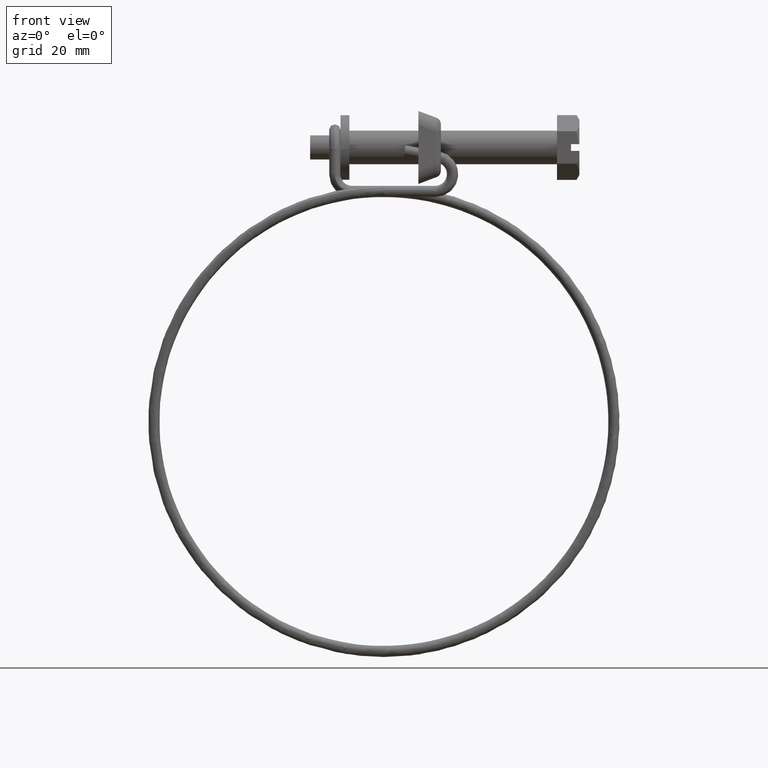
[diagram: clean part render]
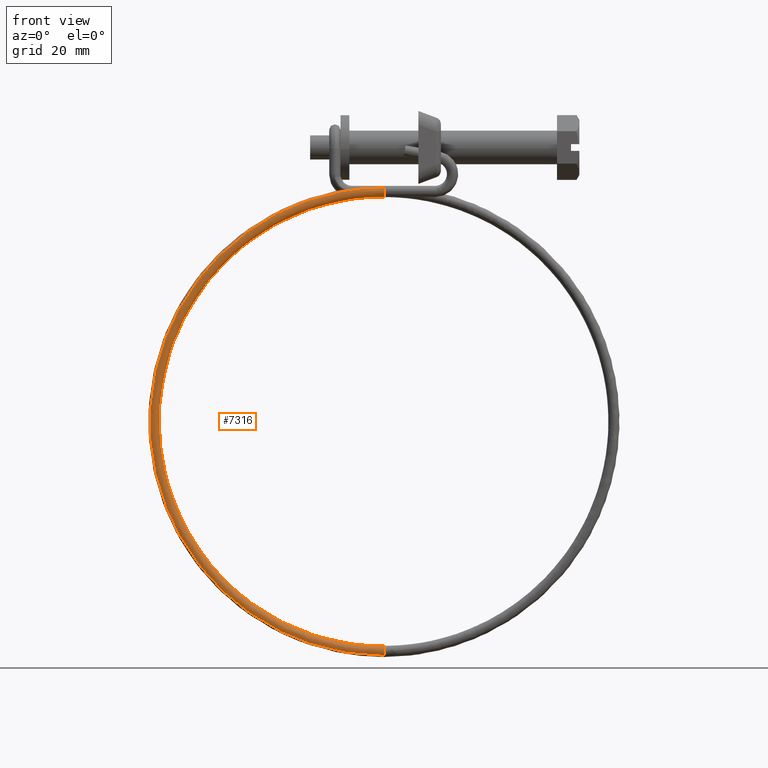
[diagram: same view with one face highlighted and labeled with its STEP entity id]
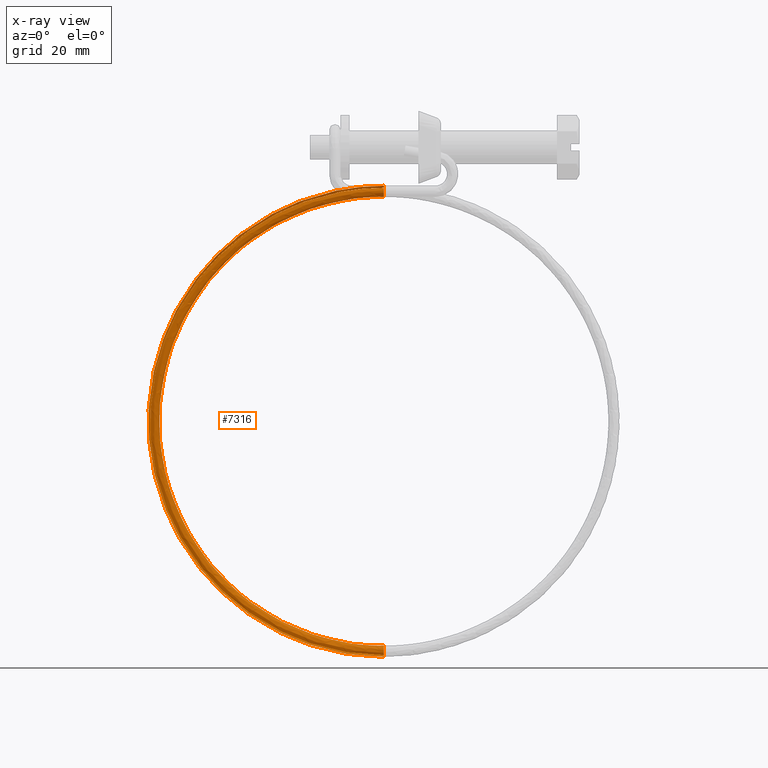
[diagram: x-ray of the same camera — body ghosted, the highlighted face saturated]
A machine part, front view. The second image highlights one B-rep face of the part: STEP entity #7316.
The next image is the same camera in x-ray: the body ghosted, the highlighted face saturated — about 0% of this face is hidden behind the body in this view.
In plain terms, the highlighted face is a freeform B-spline surface patch.
Its self-contained STEP definition (entity closure, byte-faithful):
#4592=CARTESIAN_POINT('',(-30.849999999999049,-6.004820507341497,-6.898214138594652));
#4593=VERTEX_POINT('',#4592);
#4599=CARTESIAN_POINT('',(-30.849999999999049,-6.358996926632420,-6.851201973787906));
#4600=VERTEX_POINT('',#4599);
#4601=CARTESIAN_POINT('',(-30.849999999999049,-6.004820507341497,-6.898214138594652));
#4602=CARTESIAN_POINT('',(-30.849999999999049,-6.118868065633183,-6.861704642742855));
#4603=CARTESIAN_POINT('',(-30.849999999999049,-6.239317376582270,-6.845181952245047));
#4604=CARTESIAN_POINT('',(-30.849999999999049,-6.358996926632420,-6.851201973787906));
#4605=B_SPLINE_CURVE_WITH_KNOTS('',3,(#4601,#4602,#4603,#4604),.UNSPECIFIED.,.F.,.U.,(4,4),(0.942811831421898,1.0),.UNSPECIFIED.);
#4606=EDGE_CURVE('',#4593,#4600,#4605,.T.);
#4608=CARTESIAN_POINT('',(-30.849999999999049,-7.071613986342928,-7.202001879862161));
#4609=VERTEX_POINT('',#4608);
#4619=CARTESIAN_POINT('',(-30.849999999999049,-6.261007024347260,-8.848800026212404));
#4620=VERTEX_POINT('',#4619);
#4621=CARTESIAN_POINT('',(-30.849999999999049,-7.071613986342928,-7.202001879862161));
#4622=CARTESIAN_POINT('',(-30.849999999999049,-7.234151806808340,-7.393563702138208));
#4623=CARTESIAN_POINT('',(-30.849999999999049,-7.321114744118533,-7.647971026170832));
#4624=CARTESIAN_POINT('',(-30.849999999999049,-7.295974153487710,-8.160480924739490));
#4625=CARTESIAN_POINT('',(-30.849999999999049,-7.175582627132500,-8.415075380019149));
#4626=CARTESIAN_POINT('',(-30.849999999999049,-6.787647128407930,-8.766731073329181));
#4627=CARTESIAN_POINT('',(-30.849999999999049,-6.522491997944011,-8.861626874426781));
#4628=CARTESIAN_POINT('',(-30.849999999999049,-6.261007024347260,-8.848800026212404));
#4629=B_SPLINE_CURVE_WITH_KNOTS('',3,(#4621,#4622,#4623,#4624,#4625,#4626,#4627,#4628),.UNSPECIFIED.,.F.,.U.,(4,2,2,4),(0.130000310572804,0.250000000000000,0.375000000000000,0.500000000000000),.UNSPECIFIED.);
#4630=EDGE_CURVE('',#4609,#4620,#4629,.T.);
#4632=CARTESIAN_POINT('',(-30.849999999999049,-5.310113771967435,-7.862072860608219));
#4633=VERTEX_POINT('',#4632);
#4634=CARTESIAN_POINT('',(-30.849999999999049,-6.261007024347260,-8.848800026212404));
#4635=CARTESIAN_POINT('',(-30.849999999999049,-5.999516634964651,-8.835973256124104));
#4636=CARTESIAN_POINT('',(-30.849999999999049,-5.744914699792327,-8.715581837670982));
#4637=CARTESIAN_POINT('',(-30.849999999999049,-5.406925081934599,-8.342738289815900));
#4638=CARTESIAN_POINT('',(-30.849999999999049,-5.313598938315091,-8.103321585346517));
#4639=CARTESIAN_POINT('',(-30.849999999999049,-5.310113771967435,-7.862072860608219));
#4640=B_SPLINE_CURVE_WITH_KNOTS('',3,(#4634,#4635,#4636,#4637,#4638,#4639),.UNSPECIFIED.,.F.,.U.,(4,2,4),(0.500000000000000,0.625000000000000,0.740274320840835),.UNSPECIFIED.);
#4641=EDGE_CURVE('',#4620,#4633,#4640,.T.);
#4716=CARTESIAN_POINT('',(-30.849999999999049,-5.310113771967435,-7.862072860608219));
#4717=CARTESIAN_POINT('',(-30.849999999999049,-5.309818651959471,-7.841712398043541));
#4718=CARTESIAN_POINT('',(-30.849999999999049,-5.310162997058281,-7.821338745708190));
#4719=CARTESIAN_POINT('',(-30.849999999999049,-5.323966127098498,-7.539417066609430));
#4720=CARTESIAN_POINT('',(-30.849999999999049,-5.444332243792880,-7.284715254388395));
#4721=CARTESIAN_POINT('',(-30.849999999999049,-5.743490216021185,-7.013348610114129));
#4722=CARTESIAN_POINT('',(-30.849999999999049,-5.869655061876357,-6.941730163043455));
#4723=CARTESIAN_POINT('',(-30.849999999999049,-6.004820507341497,-6.898214138594652));
#4724=B_SPLINE_CURVE_WITH_KNOTS('',3,(#4716,#4717,#4718,#4719,#4720,#4721,#4722,#4723),.UNSPECIFIED.,.F.,.U.,(4,2,2,4),(0.740274320840835,0.750000000000000,0.875000000000000,0.942811831421898),.UNSPECIFIED.);
#4725=EDGE_CURVE('',#4633,#4593,#4724,.T.);
#6112=CARTESIAN_POINT('',(-30.850000000000879,-4.300002000000002,-88.850001000000091));
#6113=VERTEX_POINT('',#6112);
#6114=CARTESIAN_POINT('',(-30.849999999873852,-3.302485887027423,-89.780271342154180));
#6115=VERTEX_POINT('',#6114);
#6116=CARTESIAN_POINT('',(-30.850000000000879,-4.300002000000002,-88.850001000000091));
#6117=CARTESIAN_POINT('',(-30.849999999983051,-4.038195655369269,-88.850000495566150));
#6118=CARTESIAN_POINT('',(-30.849999999958470,-3.777998799462701,-88.957772896960378));
#6119=CARTESIAN_POINT('',(-30.849999999911908,-3.424196145400037,-89.311556064566233));
#6120=CARTESIAN_POINT('',(-30.849999999890120,-3.319730377676162,-89.542534340369400));
#6121=CARTESIAN_POINT('',(-30.849999999873852,-3.302485887027423,-89.780271342154180));
#6122=B_SPLINE_CURVE_WITH_KNOTS('',3,(#6116,#6117,#6118,#6119,#6120,#6121),.UNSPECIFIED.,.F.,.U.,(4,2,4),(0.500000000000000,0.625000000000000,0.738888458204890),.UNSPECIFIED.);
#6123=EDGE_CURVE('',#6113,#6115,#6122,.T.);
#6125=CARTESIAN_POINT('',(-30.850000000000939,-5.028950649559777,-90.534537033441865));
#6126=VERTEX_POINT('',#6125);
#6127=CARTESIAN_POINT('',(-30.850000000000939,-5.028950649559777,-90.534537033441865));
#6128=CARTESIAN_POINT('',(-30.850000000000922,-5.200678828486540,-90.351168804465900));
#6129=CARTESIAN_POINT('',(-30.850000000000911,-5.300001999999999,-90.101327761825374));
#6130=CARTESIAN_POINT('',(-30.850000000000900,-5.300002000000001,-89.588201612200962));
#6131=CARTESIAN_POINT('',(-30.850000000000890,-5.192228903609815,-89.328014341236823));
#6132=CARTESIAN_POINT('',(-30.850000000000890,-4.821988658763284,-88.957774096390295));
#6133=CARTESIAN_POINT('',(-30.850000000000879,-4.561801387799152,-88.850001000000105));
#6134=CARTESIAN_POINT('',(-30.850000000000879,-4.300002000000002,-88.850001000000091));
#6135=B_SPLINE_CURVE_WITH_KNOTS('',3,(#6127,#6128,#6129,#6130,#6131,#6132,#6133,#6134),.UNSPECIFIED.,.F.,.U.,(4,2,2,4),(0.130000310572690,0.250000000000000,0.375000000000000,0.500000000000000),.UNSPECIFIED.);
#6136=EDGE_CURVE('',#6126,#6113,#6135,.T.);
#6138=CARTESIAN_POINT('',(-30.850000000000939,-4.300002000000005,-90.850001000000049));
#6139=VERTEX_POINT('',#6138);
#6149=CARTESIAN_POINT('',(-30.850003869120879,-4.287434920558142,-90.849920177932916));
#6150=VERTEX_POINT('',#6149);
#6151=CARTESIAN_POINT('',(-30.850003869120879,-4.287434920558142,-90.849920177932916));
#6152=CARTESIAN_POINT('',(-30.850002579547390,-4.291623333502193,-90.849974635237615));
#6153=CARTESIAN_POINT('',(-30.850001289809772,-4.295812460326872,-90.850001617475627));
#6154=CARTESIAN_POINT('',(-30.850000000000939,-4.300002000000005,-90.850001000000049));
#6155=B_SPLINE_CURVE_WITH_KNOTS('',3,(#6151,#6152,#6153,#6154),.UNSPECIFIED.,.F.,.U.,(4,4),(0.997999646031945,1.0),.UNSPECIFIED.);
#6156=EDGE_CURVE('',#6150,#6139,#6155,.T.);
#6239=CARTESIAN_POINT('',(-30.849999999873852,-3.302485887027423,-89.780271342154180));
#6240=CARTESIAN_POINT('',(-30.850000042248901,-3.300804588165965,-89.803466287294697));
#6241=CARTESIAN_POINT('',(-30.850000086246411,-3.299953544919559,-89.826725569235393));
#6242=CARTESIAN_POINT('',(-30.850000644305730,-3.299960689543872,-90.111797701208843));
#6243=CARTESIAN_POINT('',(-30.850001347914649,-3.407742793975380,-90.371985962490115));
#6244=CARTESIAN_POINT('',(-30.850002728927361,-3.775038273238351,-90.739265704915937));
#6245=CARTESIAN_POINT('',(-30.850003398269848,-4.029888317469533,-90.846533032261149));
#6246=CARTESIAN_POINT('',(-30.850003869120879,-4.287434920558142,-90.849920177932916));
#6247=B_SPLINE_CURVE_WITH_KNOTS('',3,(#6239,#6240,#6241,#6242,#6243,#6244,#6245,#6246),.UNSPECIFIED.,.F.,.U.,(4,2,2,4),(0.738888458204889,0.750000000000000,0.875000000000000,0.997999646031945),.UNSPECIFIED.);
#6248=EDGE_CURVE('',#6115,#6150,#6247,.T.);
#6975=CARTESIAN_POINT('',(-30.850000000000950,-5.028949982883884,-90.534537745304775));
#6976=CARTESIAN_POINT('',(-30.850000000000950,-5.200678314366810,-90.351170097699224));
#6977=CARTESIAN_POINT('',(-30.850000000000950,-5.300002000000000,-90.101328412287245));
#6978=CARTESIAN_POINT('',(-30.850000000000950,-5.300002000000000,-89.588201612200891));
#6979=CARTESIAN_POINT('',(-30.850000000000950,-5.192228903609820,-89.328014341236795));
#6980=CARTESIAN_POINT('',(-30.850000000000950,-4.821988658763289,-88.957774096390210));
#6981=CARTESIAN_POINT('',(-30.850000000000950,-4.561801387799160,-88.850000999999992));
#6982=CARTESIAN_POINT('',(-30.850000000000950,-4.038202612200860,-88.850000999999992));
#6983=CARTESIAN_POINT('',(-30.850000000000950,-3.778015341236725,-88.957774096390210));
#6984=CARTESIAN_POINT('',(-30.850000000000950,-3.407775096390195,-89.328014341236795));
#6985=CARTESIAN_POINT('',(-30.850000000000950,-3.300002000000000,-89.588201612200891));
#6986=CARTESIAN_POINT('',(-30.850000000000950,-3.300002000000000,-90.111800387799207));
#6987=CARTESIAN_POINT('',(-30.850000000000950,-3.407775096390195,-90.371987658763288));
#6988=CARTESIAN_POINT('',(-30.850000000000950,-3.778015341236725,-90.742227903609802));
#6989=CARTESIAN_POINT('',(-30.850000000000950,-4.038202612200860,-90.850001000000006));
#6990=CARTESIAN_POINT('',(-30.850000000000950,-4.300002000000009,-90.850001000000006));
#6991=CARTESIAN_POINT('',(-36.305318899030567,-5.028950803611580,-90.534537759588233));
#6992=CARTESIAN_POINT('',(-36.280759799363331,-5.200679131382723,-90.351170115361839));
#6993=CARTESIAN_POINT('',(-36.247729755111862,-5.300002812053657,-90.101328431836720));
#6994=CARTESIAN_POINT('',(-36.180547070363353,-5.300002802012930,-89.588201631750294));
#6995=CARTESIAN_POINT('',(-36.146827141507551,-5.192229700610910,-89.328014358701495));
#6996=CARTESIAN_POINT('',(-36.099540537418648,-4.821989448783550,-88.957774106594599));
#6997=CARTESIAN_POINT('',(-36.086265045196299,-4.561802175896450,-88.850001005139902));
#6998=CARTESIAN_POINT('',(-36.087945448286249,-4.038203400676040,-88.850000994896604));
#6999=CARTESIAN_POINT('',(-36.102890995987799,-3.778016132011990,-88.957774086182610));
#7000=CARTESIAN_POINT('',(-36.152554048954457,-3.407775894676635,-89.328014323762602));
#7001=CARTESIAN_POINT('',(-36.186965737444048,-3.300002803456245,-89.588201592639706));
#7002=CARTESIAN_POINT('',(-36.255519497335548,-3.300002813703005,-90.111800368238093));
#7003=CARTESIAN_POINT('',(-36.289239426191337,-3.407775915106140,-90.371987641326584));
#7004=CARTESIAN_POINT('',(-36.336526030294252,-3.778016166932260,-90.742227893402301));
#7005=CARTESIAN_POINT('',(-36.349801522516600,-4.038203439814700,-90.850000994896703));
#7006=CARTESIAN_POINT('',(-36.348961320971647,-4.300002827424925,-90.850001000018310));
#7007=CARTESIAN_POINT('',(-41.756597362550274,-5.055535354850994,-89.449960368318614));
#7008=CARTESIAN_POINT('',(-41.707497660455019,-5.227143996096883,-89.271475606085744));
#7009=CARTESIAN_POINT('',(-41.641462449119842,-5.326306707839581,-89.028201014807109));
#7010=CARTESIAN_POINT('',(-41.507147679842049,-5.325979289015410,-88.528431599667300));
#7011=CARTESIAN_POINT('',(-41.439733219050403,-5.218041856541750,-88.274948587017604));
#7012=CARTESIAN_POINT('',(-41.345195625866047,-4.847571157610400,-87.914109951740002));
#7013=CARTESIAN_POINT('',(-41.318654640139997,-4.587319187741199,-87.808976313155000));
#7014=CARTESIAN_POINT('',(-41.322014180771248,-4.063728601685940,-87.808642212304690));
#7015=CARTESIAN_POINT('',(-41.351894019598753,-3.803614168741860,-87.913443807399801));
#7016=CARTESIAN_POINT('',(-41.451182720656803,-3.433615959744955,-88.273809952732407));
#7017=CARTESIAN_POINT('',(-41.519980179680047,-3.326010570770515,-88.527155428452389));
#7018=CARTESIAN_POINT('',(-41.657036066772662,-3.326344671609175,-89.037124219411396));
#7019=CARTESIAN_POINT('',(-41.724450527564301,-3.434282104085165,-89.290607232135599));
#7020=CARTESIAN_POINT('',(-41.818988120730047,-3.804752803020000,-89.651445867375983));
#7021=CARTESIAN_POINT('',(-41.845529106456048,-4.065004772884550,-89.756579505998204));
#7022=CARTESIAN_POINT('',(-41.843849336140451,-4.326800065912181,-89.756746556423352));
#7023=CARTESIAN_POINT('',(-51.834657833151631,-5.157864482385008,-85.275339194153176));
#7024=CARTESIAN_POINT('',(-51.740194108241369,-5.329012513090169,-85.115645508893181));
#7025=CARTESIAN_POINT('',(-51.613147878577202,-5.427555740128985,-84.897643428204361));
#7026=CARTESIAN_POINT('',(-51.354737483445497,-5.425968297403061,-84.449277974028604));
#7027=CARTESIAN_POINT('',(-51.225037692886900,-5.317398441309540,-84.221595328072993));
#7028=CARTESIAN_POINT('',(-51.043155261528312,-4.946040873209769,-83.896937425432597));
#7029=CARTESIAN_POINT('',(-50.992092622332002,-4.685539918986850,-83.801961357712301));
#7030=CARTESIAN_POINT('',(-50.998556097764002,-4.161980849212215,-83.800341518205400));
#7031=CARTESIAN_POINT('',(-51.056042411432301,-3.902146722826950,-83.893707721096192));
#7032=CARTESIAN_POINT('',(-51.247065577457001,-3.533079953746015,-84.216074824728210));
#7033=CARTESIAN_POINT('',(-51.379426141108112,-3.426119962472660,-84.443090642850819));
#7034=CARTESIAN_POINT('',(-51.643110217698698,-3.427739801991240,-84.900606412417901));
#7035=CARTESIAN_POINT('',(-51.772810008257302,-3.536309658082435,-85.128289058299003));
#7036=CARTESIAN_POINT('',(-51.954692439634400,-3.907667226178710,-85.452946960976604));
#7037=CARTESIAN_POINT('',(-52.005755078830703,-4.168168180406290,-85.547923028659696));
#7038=CARTESIAN_POINT('',(-52.002523341114752,-4.429947715293605,-85.548732948413146));
#7039=CARTESIAN_POINT('',(-56.456585399139357,-5.233567909034217,-82.186940656105094));
#7040=CARTESIAN_POINT('',(-56.341320301829313,-5.404375208280964,-82.041147458341356));
#7041=CARTESIAN_POINT('',(-56.186297873421303,-5.502460178493565,-81.841840432522687));
#7042=CARTESIAN_POINT('',(-55.870984250512400,-5.499940647277210,-81.431500479340386));
#7043=CARTESIAN_POINT('',(-55.712723934233694,-5.390902962942060,-81.222903363996991));
#7044=CARTESIAN_POINT('',(-55.490790105482802,-5.018889343372160,-80.925009750639106));
#7045=CARTESIAN_POINT('',(-55.428483224404907,-4.758204205773690,-80.837547631570899));
#7046=CARTESIAN_POINT('',(-55.436369988638504,-4.234668449806920,-80.834976681352487));
#7047=CARTESIAN_POINT('',(-55.506515068595100,-3.975041677044685,-80.919883681655108));
#7048=CARTESIAN_POINT('',(-55.739602466323191,-3.606663930141590,-81.214141422381090));
#7049=CARTESIAN_POINT('',(-55.901109470867212,-3.500181364544050,-81.421680172832410));
#7050=CARTESIAN_POINT('',(-56.222858065672199,-3.502752314762490,-81.840394410773499));
#7051=CARTESIAN_POINT('',(-56.381118381950898,-3.611789999099975,-82.048991526079604));
#7052=CARTESIAN_POINT('',(-56.603052210701797,-3.983803618672190,-82.346885139549201));
#7053=CARTESIAN_POINT('',(-56.665359091779699,-4.244488756272995,-82.434347258542900));
#7054=CARTESIAN_POINT('',(-56.661415709662897,-4.506256634255218,-82.435632733652142));
#7055=CARTESIAN_POINT('',(-64.169706932515993,-5.422639004424996,-74.473592392381192));
#7056=CARTESIAN_POINT('',(-64.019733912195008,-5.592595511295128,-74.362508137873363));
#7057=CARTESIAN_POINT('',(-63.818032075737463,-5.689536233125677,-74.209881892334622));
#7058=CARTESIAN_POINT('',(-63.407773137953093,-5.684689315443431,-73.894490044872200));
#7059=CARTESIAN_POINT('',(-63.201858440602606,-5.574483483293630,-73.733548711557390));
#7060=CARTESIAN_POINT('',(-62.913097251029413,-5.200831730280660,-73.502484423356094));
#7061=CARTESIAN_POINT('',(-62.832028901903712,-4.939686694407120,-73.433784323794399));
#7062=CARTESIAN_POINT('',(-62.842290480492501,-4.416209152065616,-73.428838489422404));
#7063=CARTESIAN_POINT('',(-62.933557219102809,-4.157100132733191,-73.492623210261300));
#7064=CARTESIAN_POINT('',(-63.236830472252798,-3.790442845766605,-73.716693032381301));
#7065=CARTESIAN_POINT('',(-63.446969480857000,-3.685152392367530,-73.875598349210904));
#7066=CARTESIAN_POINT('',(-63.865601050024701,-3.690098226739490,-74.197426764988904));
#7067=CARTESIAN_POINT('',(-64.071515747375102,-3.800304058886960,-74.358368098340904));
#7068=CARTESIAN_POINT('',(-64.360276936948310,-4.173955811897610,-74.589432386430502));
#7069=CARTESIAN_POINT('',(-64.441345286073997,-4.435100847768815,-74.658132486066691));
#7070=CARTESIAN_POINT('',(-64.436214496779613,-4.696839618940733,-74.660605403252646));
#7071=CARTESIAN_POINT('',(-67.257870811316991,-5.535932286126398,-69.851677360830465));
#7072=CARTESIAN_POINT('',(-67.094004646827429,-5.705379072383490,-69.761387678758439));
#7073=CARTESIAN_POINT('',(-66.873617631629443,-5.801634260358528,-69.636728486430243));
#7074=CARTESIAN_POINT('',(-66.425353281005485,-5.795392975639421,-69.378221265159013));
#7075=CARTESIAN_POINT('',(-66.200363135466105,-5.684487291176301,-69.245831121075597));
#7076=CARTESIAN_POINT('',(-65.884851795668808,-5.309854111438160,-69.054805137530394));
#7077=CARTESIAN_POINT('',(-65.796273467339390,-5.048433544621161,-68.997345604137294));
#7078=CARTESIAN_POINT('',(-65.807485654183907,-4.524990878804850,-68.990976946258300));
#7079=CARTESIAN_POINT('',(-65.907207126523005,-4.266192052182060,-69.042107038904007));
#7080=CARTESIAN_POINT('',(-66.238574893034311,-3.900565514794930,-69.224126380086602));
#7081=CARTESIAN_POINT('',(-66.468180679955495,-3.795989271083855,-69.353894784008403));
#7082=CARTESIAN_POINT('',(-66.925593282633088,-3.802357928962820,-69.617677662819304));
#7083=CARTESIAN_POINT('',(-67.150583428172396,-3.913263613423615,-69.750067806939995));
#7084=CARTESIAN_POINT('',(-67.466094768007011,-4.287896793157104,-69.941093790485198));
#7085=CARTESIAN_POINT('',(-67.554673096336387,-4.549317359981080,-69.998553323915502));
#7086=CARTESIAN_POINT('',(-67.549067002914100,-4.811038692889240,-70.001737652873658));
#7087=CARTESIAN_POINT('',(-71.432071037497721,-5.782958161060649,-59.774004728269247));
#7088=CARTESIAN_POINT('',(-71.249427466328740,-5.951293715210388,-59.729048893992733));
#7089=CARTESIAN_POINT('',(-71.003786326050403,-6.046054383991105,-59.665360137140830));
#7090=CARTESIAN_POINT('',(-70.504155410140001,-6.036773266477381,-59.530865996355899));
#7091=CARTESIAN_POINT('',(-70.253383667330993,-5.924341847435370,-59.460719751357502));
#7092=CARTESIAN_POINT('',(-69.901717915908705,-5.547569078164360,-59.356980506326600));
#7093=CARTESIAN_POINT('',(-69.802989406286002,-5.285547831612560,-59.324026315193400));
#7094=CARTESIAN_POINT('',(-69.815486396426195,-4.762181199444160,-59.314555787120497));
#7095=CARTESIAN_POINT('',(-69.926634941878405,-4.504058617992780,-59.338097768106699));
#7096=CARTESIAN_POINT('',(-70.295974106231412,-4.140679197960830,-59.428443663910102));
#7097=CARTESIAN_POINT('',(-70.551890396320502,-4.037659989061191,-59.494691243775492));
#7098=CARTESIAN_POINT('',(-71.061717861535186,-4.047130517134096,-59.631930162981000));
#7099=CARTESIAN_POINT('',(-71.312489604344208,-4.159561936178440,-59.702076407942201));
#7100=CARTESIAN_POINT('',(-71.664155355729207,-4.536334705454100,-59.805815652973003));
#7101=CARTESIAN_POINT('',(-71.762883865351995,-4.798355951998910,-59.838769844068992));
#7102=CARTESIAN_POINT('',(-71.756635370281899,-5.060039268083110,-59.843505108086852));
#7103=CARTESIAN_POINT('',(-72.516468437387104,-5.916593645017086,-54.322208798726869));
#7104=CARTESIAN_POINT('',(-72.328947678711643,-6.084328121477588,-54.301774542063932));
#7105=CARTESIAN_POINT('',(-72.076747107455105,-6.178280388369351,-54.271065365279220));
#7106=CARTESIAN_POINT('',(-71.563774393463092,-6.167354991819501,-54.203651265642399));
#7107=CARTESIAN_POINT('',(-71.306306215599605,-6.054098286135980,-54.167173431296497));
#7108=CARTESIAN_POINT('',(-70.945249825427396,-5.676168189308860,-54.110648544569500));
#7109=CARTESIAN_POINT('',(-70.843884937970103,-5.413822028482541,-54.090949563014398));
#7110=CARTESIAN_POINT('',(-70.856715639096905,-4.890496523748360,-54.079801199192602));
#7111=CARTESIAN_POINT('',(-70.970832218369807,-4.632739730755220,-54.088420466665902));
#7112=CARTESIAN_POINT('',(-71.350033960090286,-4.270575801253670,-54.129179186071902));
#7113=CARTESIAN_POINT('',(-71.612784061646991,-4.168398809633410,-54.161067652598597));
#7114=CARTESIAN_POINT('',(-72.136225606536811,-4.179547173459794,-54.229857550150001));
#7115=CARTESIAN_POINT('',(-72.393693784400298,-4.292803879143306,-54.266335384533200));
#7116=CARTESIAN_POINT('',(-72.754750174572507,-4.670733975970420,-54.322860271222908));
#7117=CARTESIAN_POINT('',(-72.856115062029801,-4.933080136796749,-54.342559252778003));
#7118=CARTESIAN_POINT('',(-72.849699711466400,-5.194742889161515,-54.348133434688897));
#7119=CARTESIAN_POINT('',(-72.516468437387104,-6.183969693214051,-43.414330082766533));
#7120=CARTESIAN_POINT('',(-72.328947678711643,-6.350501549559111,-43.442957940901969));
#7121=CARTESIAN_POINT('',(-72.076747107455105,-6.442836387620643,-43.478233423496292));
#7122=CARTESIAN_POINT('',(-71.563774393463092,-6.428621161670320,-43.545031271296452));
#7123=CARTESIAN_POINT('',(-71.306306215599605,-6.313713244608441,-43.575916289957902));
#7124=CARTESIAN_POINT('',(-70.945249825427396,-5.933467597864460,-43.613856625148351));
#7125=CARTESIAN_POINT('',(-70.843884937970103,-5.670471357262731,-43.620678311410899));
#7126=CARTESIAN_POINT('',(-70.856715639096905,-5.147228139205100,-43.606172978803848));
#7127=CARTESIAN_POINT('',(-70.970832218369807,-4.890203205954430,-43.584935281365603));
#7128=CARTESIAN_POINT('',(-71.350033960090286,-4.530471197299420,-43.526481308081500));
#7129=CARTESIAN_POINT('',(-71.612784061646991,-4.429979291431906,-43.489624982055062));
#7130=CARTESIAN_POINT('',(-72.136225606536811,-4.444484624034280,-43.421463912908450));
#7131=CARTESIAN_POINT('',(-72.393693784400298,-4.559392541096160,-43.390578894209753));
#7132=CARTESIAN_POINT('',(-72.754750174572507,-4.939638187840139,-43.352638559056501));
#7133=CARTESIAN_POINT('',(-72.856115062029801,-5.202634428441870,-43.345816872794003));
#7134=CARTESIAN_POINT('',(-72.849699711466400,-5.464256037473009,-43.353069539097497));
#7135=CARTESIAN_POINT('',(-71.432071037513026,-6.317605177179820,-37.962534153169202));
#7136=CARTESIAN_POINT('',(-71.249427466327546,-6.483535955835637,-38.015683588934763));
#7137=CARTESIAN_POINT('',(-71.003786326049322,-6.575062392008183,-38.083938651597059));
#7138=CARTESIAN_POINT('',(-70.504155410138907,-6.559202887019450,-38.217816540581801));
#7139=CARTESIAN_POINT('',(-70.253383667329899,-6.443469683318400,-38.282369969858500));
#7140=CARTESIAN_POINT('',(-69.901717915944886,-6.062066709022961,-38.367524663315614));
#7141=CARTESIAN_POINT('',(-69.802989406247605,-5.798745554137390,-38.387601559156252));
#7142=CARTESIAN_POINT('',(-69.815486396387797,-5.275543463516310,-38.371418390763147));
#7143=CARTESIAN_POINT('',(-69.926634941877296,-5.018884318721560,-38.335257979849153));
#7144=CARTESIAN_POINT('',(-70.295974106230204,-4.660367800596950,-38.227216830242199));
#7145=CARTESIAN_POINT('',(-70.551890396319394,-4.560718112006479,-38.156001390839748));
#7146=CARTESIAN_POINT('',(-71.061717861534092,-4.576901280364660,-38.019391300076251));
#7147=CARTESIAN_POINT('',(-71.312489604343099,-4.692634484068040,-37.954837870762347));
#7148=CARTESIAN_POINT('',(-71.664155355728113,-5.074037458363480,-37.869683177305198));
#7149=CARTESIAN_POINT('',(-71.762883865388090,-5.337358613249050,-37.849606281427299));
#7150=CARTESIAN_POINT('',(-71.756635370317994,-5.598959658559590,-37.857697865623848));
#7151=CARTESIAN_POINT('',(-67.257870811299398,-6.564631052095452,-27.884861520715479));
#7152=CARTESIAN_POINT('',(-67.094004646826335,-6.729450598643921,-27.983344804243480));
#7153=CARTESIAN_POINT('',(-66.873617631628335,-6.819482515622234,-28.112570302380671));
#7154=CARTESIAN_POINT('',(-66.425353281004291,-6.800583177843440,-28.370461271778652));
#7155=CARTESIAN_POINT('',(-66.200363135465011,-6.683324239558830,-28.497258600214899));
#7156=CARTESIAN_POINT('',(-65.884851795630397,-6.299781675721221,-28.669700032260849));
#7157=CARTESIAN_POINT('',(-65.796273467375485,-6.035859841119481,-28.714282270361402));
#7158=CARTESIAN_POINT('',(-65.807485654220102,-5.512733784141660,-28.694997231848848));
#7159=CARTESIAN_POINT('',(-65.907207126521897,-5.256750884522970,-28.631248709200850));
#7160=CARTESIAN_POINT('',(-66.238574893033217,-4.900481483753540,-28.431534114065752));
#7161=CARTESIAN_POINT('',(-66.468180679954401,-4.802388829979160,-28.296797850681351));
#7162=CARTESIAN_POINT('',(-66.925593282631894,-4.821673868526621,-28.033643800238000));
#7163=CARTESIAN_POINT('',(-67.150583428171302,-4.938932806808900,-27.906846471839000));
#7164=CARTESIAN_POINT('',(-67.466094768005917,-5.322475370646510,-27.734405039793049));
#7165=CARTESIAN_POINT('',(-67.554673096297989,-5.586397205248260,-27.689822801729800));
#7166=CARTESIAN_POINT('',(-67.549067002875688,-5.847960233737171,-27.699465320986050));
#7167=CARTESIAN_POINT('',(-64.169706932496069,-6.677924333818284,-23.262946489112501));
#7168=CARTESIAN_POINT('',(-64.019733912172427,-6.842234159757479,-23.382224345090091));
#7169=CARTESIAN_POINT('',(-63.818032075681188,-6.931580542875808,-23.539416896403370));
#7170=CARTESIAN_POINT('',(-63.407773137933290,-6.911286838051031,-23.854192491992599));
#7171=CARTESIAN_POINT('',(-63.201858440582903,-6.793328047462420,-24.009541009697401));
#7172=CARTESIAN_POINT('',(-62.913097250972413,-6.408804056897310,-24.222020746325001));
#7173=CARTESIAN_POINT('',(-62.832028901883902,-6.144606691347450,-24.277843550594099));
#7174=CARTESIAN_POINT('',(-62.842290480472798,-5.621515510897151,-24.257135688574550));
#7175=CARTESIAN_POINT('',(-62.933557219045809,-5.365842803985760,-24.180732537733348));
#7176=CARTESIAN_POINT('',(-63.236830472233002,-5.010604152795790,-23.938967461735299));
#7177=CARTESIAN_POINT('',(-63.446969480837197,-4.913225708707090,-23.775094285443249));
#7178=CARTESIAN_POINT('',(-63.865601049967687,-4.933933570763890,-23.453894698107302));
#7179=CARTESIAN_POINT('',(-64.071515747355392,-5.051892361364140,-23.298546180439750));
#7180=CARTESIAN_POINT('',(-64.360276936928599,-5.436416351919930,-23.086066443774900));
#7181=CARTESIAN_POINT('',(-64.441345286016997,-5.700613717474450,-23.030243639543048));
#7182=CARTESIAN_POINT('',(-64.436214496722599,-5.962159307699600,-23.040597570552819));
#7183=CARTESIAN_POINT('',(-56.456585399157028,-6.866995429184749,-15.549598225388870));
#7184=CARTESIAN_POINT('',(-56.341320301849692,-7.030454462739796,-15.703585024627911));
#7185=CARTESIAN_POINT('',(-56.186297873475347,-7.118656597484921,-15.907458356291270));
#7186=CARTESIAN_POINT('',(-55.870984250529901,-7.096035506207941,-16.317182057673350));
#7187=CARTESIAN_POINT('',(-55.712723934251187,-6.976908567790720,-16.520186357257799));
#7188=CARTESIAN_POINT('',(-55.490790105537499,-6.590746443796490,-16.799495419116401));
#7189=CARTESIAN_POINT('',(-55.428483224422408,-6.326089179962261,-16.874080242891949));
#7190=CARTESIAN_POINT('',(-55.436369988655898,-5.803056213137220,-16.850997496644400));
#7191=CARTESIAN_POINT('',(-55.506515068649797,-5.547901259655650,-16.753472066414002));
#7192=CARTESIAN_POINT('',(-55.739602466340692,-5.194383068402191,-16.441519071809999));
#7193=CARTESIAN_POINT('',(-55.901109470884712,-5.098196736511950,-16.229012461821650));
#7194=CARTESIAN_POINT('',(-56.222858065726903,-5.121279482722260,-15.810927052248150));
#7195=CARTESIAN_POINT('',(-56.381118381968392,-5.240406421127850,-15.607922752626450));
#7196=CARTESIAN_POINT('',(-56.603052210719298,-5.626568545131380,-15.328613690805099));
#7197=CARTESIAN_POINT('',(-56.665359091834503,-5.891225808960960,-15.254028866992250));
#7198=CARTESIAN_POINT('',(-56.661415709717687,-6.152742292373481,-15.265570240116030));
#7199=CARTESIAN_POINT('',(-51.834657833159163,-6.942698855849457,-12.461199687324230));
#7200=CARTESIAN_POINT('',(-51.740194108251657,-7.105817157948659,-12.629086974073230));
#7201=CARTESIAN_POINT('',(-51.613147878519541,-7.193561035861000,-12.851655360570939));
#7202=CARTESIAN_POINT('',(-51.354737483424302,-7.170007856086750,-13.299404562873500));
#7203=CARTESIAN_POINT('',(-51.225037692847103,-7.050413089437200,-13.521494393181859));
#7204=CARTESIAN_POINT('',(-51.043155261488600,-6.663594913963540,-13.827567744285719));
#7205=CARTESIAN_POINT('',(-50.992092622310899,-6.398753466756080,-13.909666516638961));
#7206=CARTESIAN_POINT('',(-50.998556097761501,-5.875743813745890,-13.885632659717141));
#7207=CARTESIAN_POINT('',(-51.056042411411198,-5.620796213885020,-13.779648027010261));
#7208=CARTESIAN_POINT('',(-51.247065577417303,-5.267967044808231,-13.439585669425700));
#7209=CARTESIAN_POINT('',(-51.379426141068301,-5.172258138596140,-13.207601991803340));
#7210=CARTESIAN_POINT('',(-51.643110217696112,-5.196291995508640,-12.750715050678300));
#7211=CARTESIAN_POINT('',(-51.772810008273403,-5.315886762162840,-12.528625220444420));
#7212=CARTESIAN_POINT('',(-51.954692439631913,-5.702704937631850,-12.222551869340560));
#7213=CARTESIAN_POINT('',(-52.005755078828201,-5.967546384834650,-12.140453096912820));
#7214=CARTESIAN_POINT('',(-52.002523341102901,-6.229051211344400,-12.152470025373731));
#7215=CARTESIAN_POINT('',(-41.756597362537647,-7.045027983376782,-8.286578513191774));
#7216=CARTESIAN_POINT('',(-41.707497660439643,-7.207685674937657,-8.473256876880708));
#7217=CARTESIAN_POINT('',(-41.641462449172387,-7.294810068150405,-8.721097773969609));
#7218=CARTESIAN_POINT('',(-41.507147679858150,-7.269996864474400,-9.220250937309279));
#7219=CARTESIAN_POINT('',(-41.439733219085113,-7.149769674200330,-9.468141134237321));
#7220=CARTESIAN_POINT('',(-41.345195625900807,-6.762064629562900,-9.810395217978391));
#7221=CARTESIAN_POINT('',(-41.318654640156147,-6.496974198006380,-9.902651561345220));
#7222=CARTESIAN_POINT('',(-41.322014180768747,-5.973996061262850,-9.877331965766770));
#7223=CARTESIAN_POINT('',(-41.351894019614853,-5.719328767965450,-9.759911940557739));
#7224=CARTESIAN_POINT('',(-41.451182720691548,-5.367431038806960,-9.381850541421519));
#7225=CARTESIAN_POINT('',(-41.519980179714750,-5.272367530291300,-9.123537206201780));
#7226=CARTESIAN_POINT('',(-41.657036066770097,-5.297687125879070,-8.614197243610279));
#7227=CARTESIAN_POINT('',(-41.724450527543148,-5.417914316148470,-8.366307046607769));
#7228=CARTESIAN_POINT('',(-41.818988120727496,-5.805619360790560,-8.024052962866699));
#7229=CARTESIAN_POINT('',(-41.845529106453498,-6.070709792351741,-7.931796619574340));
#7230=CARTESIAN_POINT('',(-41.843849336147187,-6.332198860718850,-7.944456417363570));
#7231=CARTESIAN_POINT('',(-36.305318865696947,-7.071802026515540,-7.202034668699312));
#7232=CARTESIAN_POINT('',(-36.280759766229536,-7.234339610149903,-7.393595691949216));
#7233=CARTESIAN_POINT('',(-36.247729722194762,-7.321302463512176,-7.648003380179147));
#7234=CARTESIAN_POINT('',(-36.180547038020102,-7.296160679049540,-8.160513314088711));
#7235=CARTESIAN_POINT('',(-36.146827109425601,-7.175768563801410,-8.415107462039599));
#7236=CARTESIAN_POINT('',(-36.099540505725798,-6.787832232840420,-8.766762725463700));
#7237=CARTESIAN_POINT('',(-36.086265013629337,-6.522676867372209,-8.861658406033369));
#7238=CARTESIAN_POINT('',(-36.087945416729212,-5.999706949958110,-8.836004724843820));
#7239=CARTESIAN_POINT('',(-36.102890964300748,-5.745112759116870,-8.715613334178409));
#7240=CARTESIAN_POINT('',(-36.152554016858502,-5.393457939107740,-8.327678287076051));
#7241=CARTESIAN_POINT('',(-36.186965705070953,-5.298562738293050,-8.062523470432069));
#7242=CARTESIAN_POINT('',(-36.255519464432602,-5.324217618963390,-7.539554150366399));
#7243=CARTESIAN_POINT('',(-36.289239393025298,-5.444609722209940,-7.284960004496861));
#7244=CARTESIAN_POINT('',(-36.336525996720553,-5.832546023778130,-6.933304746242730));
#7245=CARTESIAN_POINT('',(-36.349801488829343,-6.097701378365311,-6.838409067449040));
#7246=CARTESIAN_POINT('',(-36.348961287279543,-6.359186337793259,-6.851235907918861));
#7247=CARTESIAN_POINT('',(-30.849999999999049,-7.071613355345150,-7.202001136190101));
#7248=CARTESIAN_POINT('',(-30.849999999999049,-7.234151356667788,-7.393562385268178));
#7249=CARTESIAN_POINT('',(-30.849999999999049,-7.321114775987895,-7.647970376489860));
#7250=CARTESIAN_POINT('',(-30.849999999999049,-7.295974153487710,-8.160480924739490));
#7251=CARTESIAN_POINT('',(-30.849999999999049,-7.175582627132500,-8.415075380019149));
#7252=CARTESIAN_POINT('',(-30.849999999999049,-6.787647128407930,-8.766731073329181));
#7253=CARTESIAN_POINT('',(-30.849999999999049,-6.522491997944011,-8.861626874426781));
#7254=CARTESIAN_POINT('',(-30.849999999999049,-5.999522050750510,-8.835973177998030));
#7255=CARTESIAN_POINT('',(-30.849999999999049,-5.744927595470831,-8.715581651642809));
#7256=CARTESIAN_POINT('',(-30.849999999999049,-5.393271902160800,-8.327646152918240));
#7257=CARTESIAN_POINT('',(-30.849999999999049,-5.298376101063220,-8.062491022454319));
#7258=CARTESIAN_POINT('',(-30.849999999999049,-5.324029797491970,-7.539521075260820));
#7259=CARTESIAN_POINT('',(-30.849999999999049,-5.444421323847170,-7.284926619981150));
#7260=CARTESIAN_POINT('',(-30.849999999999049,-5.832356822571750,-6.933270926671121));
#7261=CARTESIAN_POINT('',(-30.849999999999049,-6.097511953035669,-6.838375125573530));
#7262=CARTESIAN_POINT('',(-30.849999999999049,-6.358996926632420,-6.851201973787906));
#7263=B_SPLINE_SURFACE_WITH_KNOTS('',3,3,((#6975,#6991,#7007,#7023,#7039,#7055,#7071,#7087,#7103,#7119,#7135,#7151,#7167,#7183,#7199,#7215,#7231,#7247),(#6976,#6992,#7008,#7024,#7040,#7056,#7072,#7088,#7104,#7120,#7136,#7152,#7168,#7184,#7200,#7216,#7232,#7248),(#6977,#6993,#7009,#7025,#7041,#7057,#7073,#7089,#7105,#7121,#7137,#7153,#7169,#7185,#7201,#7217,#7233,#7249),(#6978,#6994,#7010,#7026,#7042,#7058,#7074,#7090,#7106,#7122,#7138,#7154,#7170,#7186,#7202,#7218,#7234,#7250),(#6979,#6995,#7011,#7027,#7043,#7059,#7075,#7091,#7107,#7123,#7139,#7155,#7171,#7187,#7203,#7219,#7235,#7251),(#6980,#6996,#7012,#7028,#7044,#7060,#7076,#7092,#7108,#7124,#7140,#7156,#7172,#7188,#7204,#7220,#7236,#7252),(#6981,#6997,#7013,#7029,#7045,#7061,#7077,#7093,#7109,#7125,#7141,#7157,#7173,#7189,#7205,#7221,#7237,#7253),(#6982,#6998,#7014,#7030,#7046,#7062,#7078,#7094,#7110,#7126,#7142,#7158,#7174,#7190,#7206,#7222,#7238,#7254),(#6983,#6999,#7015,#7031,#7047,#7063,#7079,#7095,#7111,#7127,#7143,#7159,#7175,#7191,#7207,#7223,#7239,#7255),(#6984,#7000,#7016,#7032,#7048,#7064,#7080,#7096,#7112,#7128,#7144,#7160,#7176,#7192,#7208,#7224,#7240,#7256),(#6985,#7001,#7017,#7033,#7049,#7065,#7081,#7097,#7113,#7129,#7145,#7161,#7177,#7193,#7209,#7225,#7241,#7257),(#6986,#7002,#7018,#7034,#7050,#7066,#7082,#7098,#7114,#7130,#7146,#7162,#7178,#7194,#7210,#7226,#7242,#7258),(#6987,#7003,#7019,#7035,#7051,#7067,#7083,#7099,#7115,#7131,#7147,#7163,#7179,#7195,#7211,#7227,#7243,#7259),(#6988,#7004,#7020,#7036,#7052,#7068,#7084,#7100,#7116,#7132,#7148,#7164,#7180,#7196,#7212,#7228,#7244,#7260),(#6989,#7005,#7021,#7037,#7053,#7069,#7085,#7101,#7117,#7133,#7149,#7165,#7181,#7197,#7213,#7229,#7245,#7261),(#6990,#7006,#7022,#7038,#7054,#7070,#7086,#7102,#7118,#7134,#7150,#7166,#7182,#7198,#7214,#7230,#7246,#7262)),.UNSPECIFIED.,.F.,.F.,.U.,(4,2,2,2,2,2,2,4),(4,2,2,2,2,2,2,2,4),(0.0,0.753982236861549,1.539380400258997,2.324778563656444,3.110176727053892,3.895574890451339,4.680973053848787,5.466371217246234),(0.0,16.496999478071459,32.993998956142363,49.490998434213822,65.987997912284726,82.484997390355502,98.981996868427018,115.478996346497890,131.975995824569400),.UNSPECIFIED.);
#7264=ORIENTED_EDGE('',*,*,#4630,.F.);
#7265=CARTESIAN_POINT('',(-30.850000000000939,-5.028950649559777,-90.534537033441865));
#7266=CARTESIAN_POINT('',(-36.305318899030567,-5.028950803611579,-90.534537759588233));
#7267=CARTESIAN_POINT('',(-41.756597362550259,-5.055535354850994,-89.449960368318614));
#7268=CARTESIAN_POINT('',(-51.834657833151638,-5.157864482385008,-85.275339194153190));
#7269=CARTESIAN_POINT('',(-56.456585399139357,-5.233567909034217,-82.186940656105079));
#7270=CARTESIAN_POINT('',(-64.169706932515993,-5.422639004424996,-74.473592392381192));
#7271=CARTESIAN_POINT('',(-67.257870811316991,-5.535932286126398,-69.851677360830465));
#7272=CARTESIAN_POINT('',(-71.432071037497721,-5.782958161060649,-59.774004728269247));
#7273=CARTESIAN_POINT('',(-72.516468437387118,-5.916593645017086,-54.322208798726869));
#7274=CARTESIAN_POINT('',(-72.516468437387118,-6.183969693214051,-43.414330082766533));
#7275=CARTESIAN_POINT('',(-71.432071037513026,-6.317605177179821,-37.962534153169202));
#7276=CARTESIAN_POINT('',(-67.257870811299398,-6.564631052095453,-27.884861520715479));
#7277=CARTESIAN_POINT('',(-64.169706932496084,-6.677924333818284,-23.262946489112501));
#7278=CARTESIAN_POINT('',(-56.456585399157028,-6.866995429184750,-15.549598225388870));
#7279=CARTESIAN_POINT('',(-51.834657833159163,-6.942698855849457,-12.461199687324241));
#7280=CARTESIAN_POINT('',(-41.756597362537647,-7.045027983376782,-8.286578513191776));
#7281=CARTESIAN_POINT('',(-36.305318865696947,-7.071802026515540,-7.202034668699311));
#7282=CARTESIAN_POINT('',(-30.849999999999049,-7.071613986342928,-7.202001879862161));
#7283=B_SPLINE_CURVE_WITH_KNOTS('',3,(#7265,#7266,#7267,#7268,#7269,#7270,#7271,#7272,#7273,#7274,#7275,#7276,#7277,#7278,#7279,#7280,#7281,#7282),.UNSPECIFIED.,.F.,.U.,(4,2,2,2,2,2,2,2,4),(0.746796299225829,0.773394937385420,0.799993575545010,0.826592213704601,0.853190851864191,0.879789490023781,0.906388128183372,0.932986766342962,0.959585404502553),.UNSPECIFIED.);
#7284=EDGE_CURVE('',#6126,#4609,#7283,.T.);
#7285=ORIENTED_EDGE('',*,*,#7284,.F.);
#7286=ORIENTED_EDGE('',*,*,#6136,.T.);
#7287=ORIENTED_EDGE('',*,*,#6123,.T.);
#7288=ORIENTED_EDGE('',*,*,#6248,.T.);
#7289=ORIENTED_EDGE('',*,*,#6156,.T.);
#7290=CARTESIAN_POINT('',(-30.850000000000950,-4.300002000000009,-90.850001000000006));
#7291=CARTESIAN_POINT('',(-36.348961320971647,-4.300002827424925,-90.850001000018310));
#7292=CARTESIAN_POINT('',(-41.843849336140451,-4.326800065912181,-89.756746556423352));
#7293=CARTESIAN_POINT('',(-52.002523341114752,-4.429947715293605,-85.548732948413146));
#7294=CARTESIAN_POINT('',(-56.661415709662897,-4.506256634255218,-82.435632733652142));
#7295=CARTESIAN_POINT('',(-64.436214496779613,-4.696839618940733,-74.660605403252646));
#7296=CARTESIAN_POINT('',(-67.549067002914100,-4.811038692889240,-70.001737652873658));
#7297=CARTESIAN_POINT('',(-71.756635370281899,-5.060039268083110,-59.843505108086852));
#7298=CARTESIAN_POINT('',(-72.849699711466400,-5.194742889161515,-54.348133434688897));
#7299=CARTESIAN_POINT('',(-72.849699711466400,-5.464256037473009,-43.353069539097497));
#7300=CARTESIAN_POINT('',(-71.756635370317994,-5.598959658559590,-37.857697865623848));
#7301=CARTESIAN_POINT('',(-67.549067002875688,-5.847960233737171,-27.699465320986050));
#7302=CARTESIAN_POINT('',(-64.436214496722599,-5.962159307699600,-23.040597570552819));
#7303=CARTESIAN_POINT('',(-56.661415709717687,-6.152742292373481,-15.265570240116030));
#7304=CARTESIAN_POINT('',(-52.002523341102901,-6.229051211344400,-12.152470025373731));
#7305=CARTESIAN_POINT('',(-41.843849336147187,-6.332198860718850,-7.944456417363570));
#7306=CARTESIAN_POINT('',(-36.348961287279543,-6.359186337793259,-6.851235907918861));
#7307=CARTESIAN_POINT('',(-30.849999999999049,-6.358996926632420,-6.851201973787906));
#7308=B_SPLINE_CURVE_WITH_KNOTS('',3,(#7290,#7291,#7292,#7293,#7294,#7295,#7296,#7297,#7298,#7299,#7300,#7301,#7302,#7303,#7304,#7305,#7306,#7307),.UNSPECIFIED.,.F.,.U.,(4,2,2,2,2,2,2,2,4),(0.746796299225829,0.773394937385420,0.799993575545010,0.826592213704601,0.853190851864191,0.879789490023781,0.906388128183372,0.932986766342962,0.959585404502553),.UNSPECIFIED.);
#7309=EDGE_CURVE('',#6139,#4600,#7308,.T.);
#7310=ORIENTED_EDGE('',*,*,#7309,.T.);
#7311=ORIENTED_EDGE('',*,*,#4606,.F.);
#7312=ORIENTED_EDGE('',*,*,#4725,.F.);
#7313=ORIENTED_EDGE('',*,*,#4641,.F.);
#7314=EDGE_LOOP('',(#7264,#7285,#7286,#7287,#7288,#7289,#7310,#7311,#7312,#7313));
#7315=FACE_OUTER_BOUND('',#7314,.T.);
#7316=ADVANCED_FACE('',(#7315),#7263,.T.);